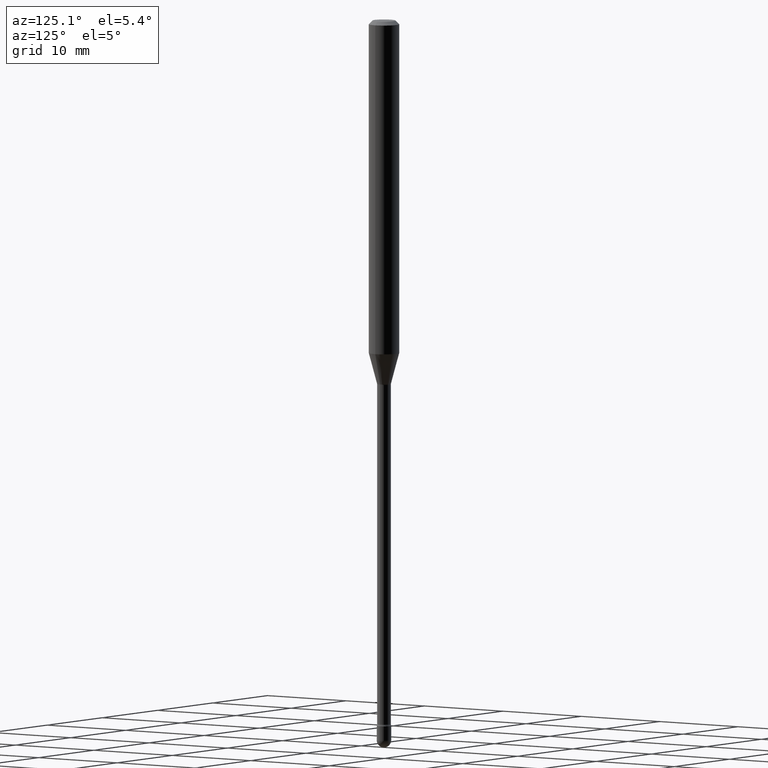
[diagram: clean part render]
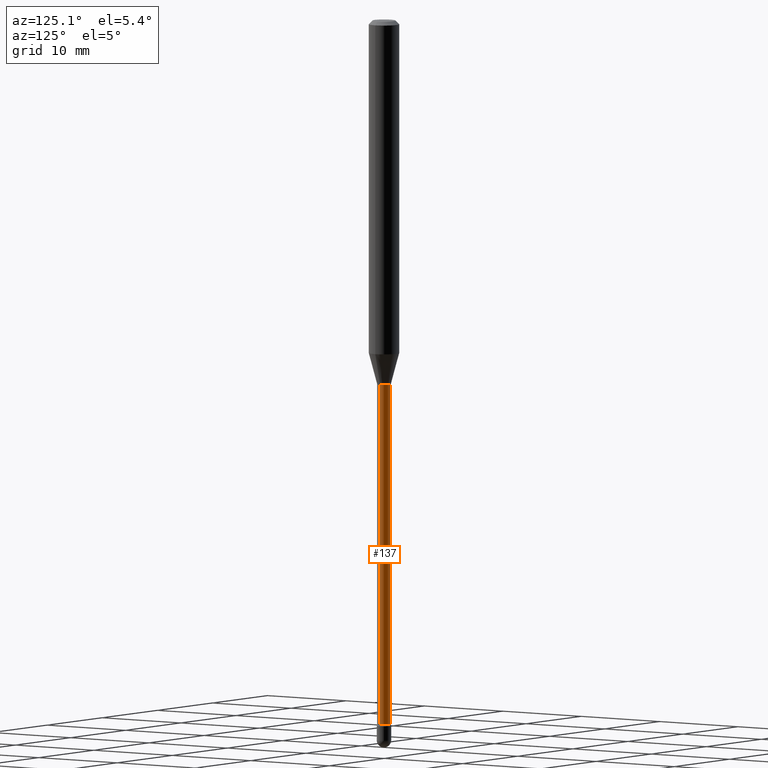
[diagram: same view with one face highlighted and labeled with its STEP entity id]
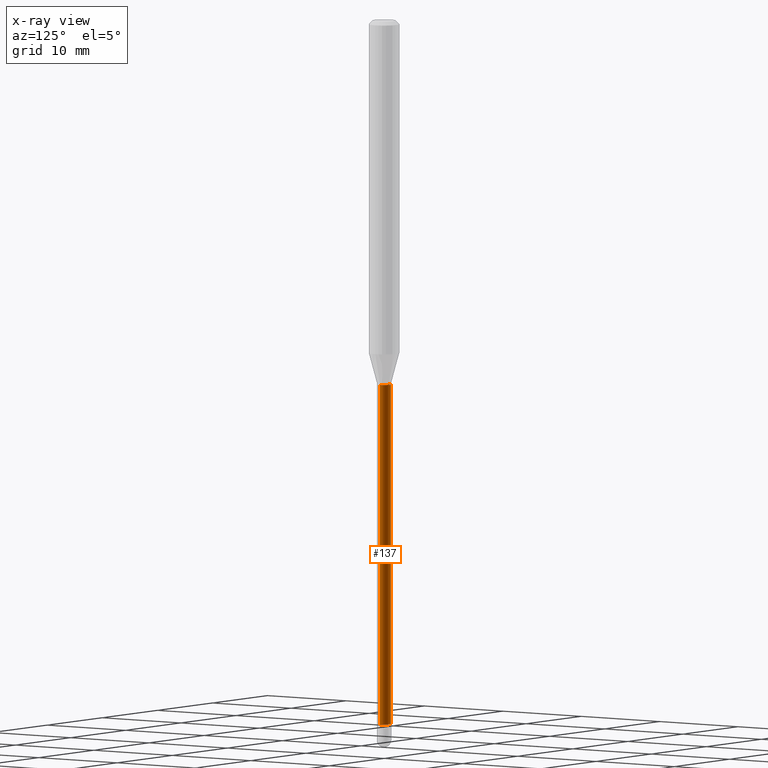
[diagram: x-ray of the same camera — body ghosted, the highlighted face saturated]
A machine part, auxiliary view. The second image highlights one B-rep face of the part: STEP entity #137.
The next image is the same camera in x-ray: the body ghosted, the highlighted face saturated — about 0% of this face is hidden behind the body in this view.
In plain terms, the highlighted cylindrical surface (edge-blend (fillet) strip) has radius 0.7163 mm, axis along (-0, 0, 1).
Its self-contained STEP definition (entity closure, byte-faithful):
#8 = CIRCLE ( 'NONE', #225, 0.02819999999999999590 ) ;
#11 = CYLINDRICAL_SURFACE ( 'NONE', #300, 0.02820000000000010693 ) ;
#26 = AXIS2_PLACEMENT_3D ( 'NONE', #365, #489, #445 ) ;
#39 = DIRECTION ( 'NONE',  ( -2.445468806185136877E-29, 3.491481338843145188E-15, 1.000000000000000000 ) ) ;
#60 = FACE_OUTER_BOUND ( 'NONE', #220, .T. ) ;
#68 = LINE ( 'NONE', #277, #542 ) ;
#86 = ORIENTED_EDGE ( 'NONE', *, *, #402, .F. ) ;
#103 = DIRECTION ( 'NONE',  ( -2.445468806185136597E-29, 3.491481338843145583E-15, 1.000000000000000000 ) ) ;
#120 = CARTESIAN_POINT ( 'NONE',  ( 0.02820000000000010693, -1.969195475107518148E-16, 4.780733988912474930E-16 ) ) ;
#129 = LINE ( 'NONE', #120, #397 ) ;
#137 = ADVANCED_FACE ( 'NONE', ( #60 ), #11, .T. ) ;
#145 = CARTESIAN_POINT ( 'NONE',  ( -0.02820000000000021795, -9.941005046784985049E-15, -2.902875394747778337 ) ) ;
#149 = DIRECTION ( 'NONE',  ( -2.445468806185136877E-29, 3.491481338843145188E-15, 1.000000000000000000 ) ) ;
#156 = CARTESIAN_POINT ( 'NONE',  ( 0.02819999999999999590, -5.441036489353549392E-15, -1.501974787463811190 ) ) ;
#169 = VERTEX_POINT ( 'NONE', #145 ) ;
#183 = DIRECTION ( 'NONE',  ( 1.000000000000000000, -6.982962677686267499E-15, 4.947382444955185591E-29 ) ) ;
#210 = ORIENTED_EDGE ( 'NONE', *, *, #421, .T. ) ;
#218 = ORIENTED_EDGE ( 'NONE', *, *, #412, .T. ) ;
#220 = EDGE_LOOP ( 'NONE', ( #218, #210, #86, #241 ) ) ;
#225 = AXIS2_PLACEMENT_3D ( 'NONE', #451, #103, #325 ) ;
#241 = ORIENTED_EDGE ( 'NONE', *, *, #497, .F. ) ;
#245 = VERTEX_POINT ( 'NONE', #373 ) ;
#254 = VERTEX_POINT ( 'NONE', #382 ) ;
#277 = CARTESIAN_POINT ( 'NONE',  ( -0.02820000000000010693, 2.003730514843506885E-16, 4.780733988912446334E-16 ) ) ;
#278 = CIRCLE ( 'NONE', #26, 0.02820000000000021795 ) ;
#300 = AXIS2_PLACEMENT_3D ( 'NONE', #327, #406, #183 ) ;
#325 = DIRECTION ( 'NONE',  ( 1.000000000000000000, -6.982962677686278543E-15, 0.000000000000000000 ) ) ;
#327 = CARTESIAN_POINT ( 'NONE',  ( -1.169113584055446105E-44, 1.669184350826100908E-30, 4.780733988912460139E-16 ) ) ;
#365 = CARTESIAN_POINT ( 'NONE',  ( 7.098891226098056422E-29, -1.013533526974879710E-14, -2.902875394747778337 ) ) ;
#373 = CARTESIAN_POINT ( 'NONE',  ( -0.02819999999999999590, -7.489353054311444679E-15, -1.501974787463811190 ) ) ;
#382 = CARTESIAN_POINT ( 'NONE',  ( 0.02820000000000021795, -1.033225481725955059E-14, -2.902875394747778337 ) ) ;
#397 = VECTOR ( 'NONE', #39, 39.37007874015748143 ) ;
#402 = EDGE_CURVE ( 'NONE', #561, #245, #8, .T. ) ;
#406 = DIRECTION ( 'NONE',  ( -2.445468806185136597E-29, 3.491481338843145583E-15, 1.000000000000000000 ) ) ;
#412 = EDGE_CURVE ( 'NONE', #254, #169, #278, .T. ) ;
#421 = EDGE_CURVE ( 'NONE', #169, #245, #68, .T. ) ;
#445 = DIRECTION ( 'NONE',  ( 1.000000000000000000, -6.982962677686258033E-15, 0.000000000000000000 ) ) ;
#451 = CARTESIAN_POINT ( 'NONE',  ( 3.673032490419300829E-29, -5.244116941842796689E-15, -1.501974787463811190 ) ) ;
#489 = DIRECTION ( 'NONE',  ( -2.445468806185136597E-29, 3.491481338843145583E-15, 1.000000000000000000 ) ) ;
#497 = EDGE_CURVE ( 'NONE', #254, #561, #129, .T. ) ;
#542 = VECTOR ( 'NONE', #149, 39.37007874015748143 ) ;
#561 = VERTEX_POINT ( 'NONE', #156 ) ;